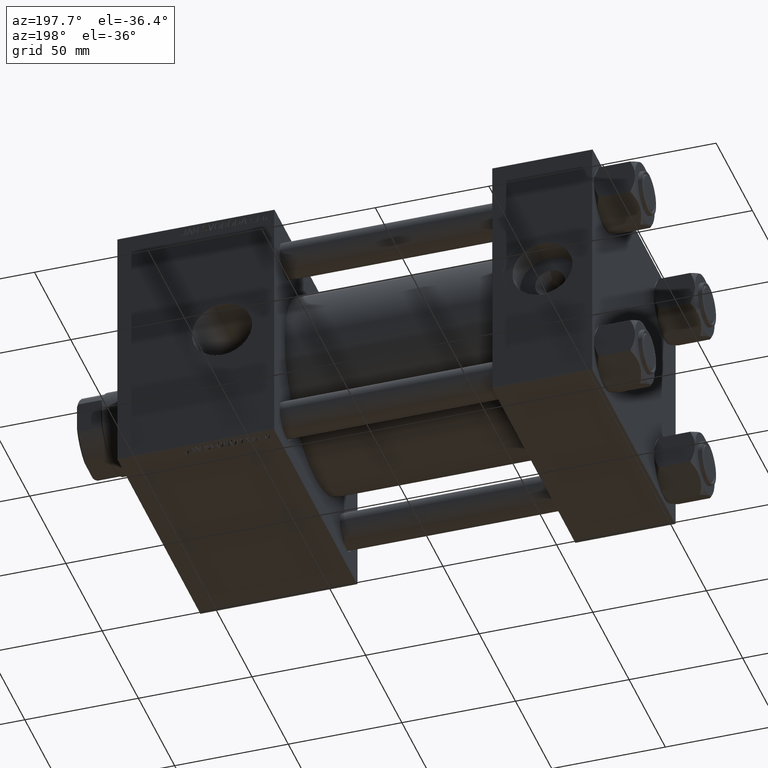
[diagram: clean part render]
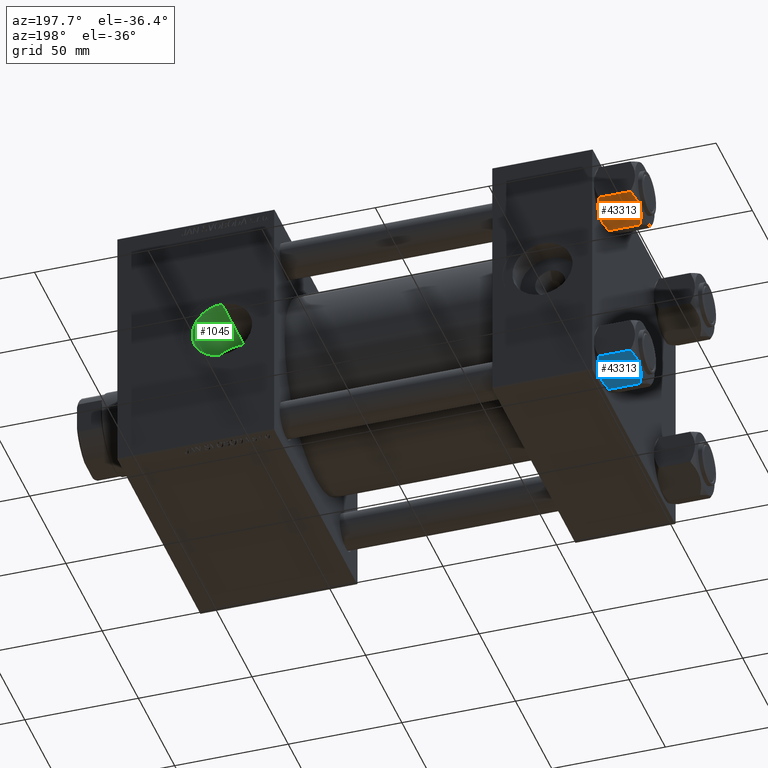
[diagram: same view with three faces highlighted in distinct colors, each labeled with its STEP entity id]
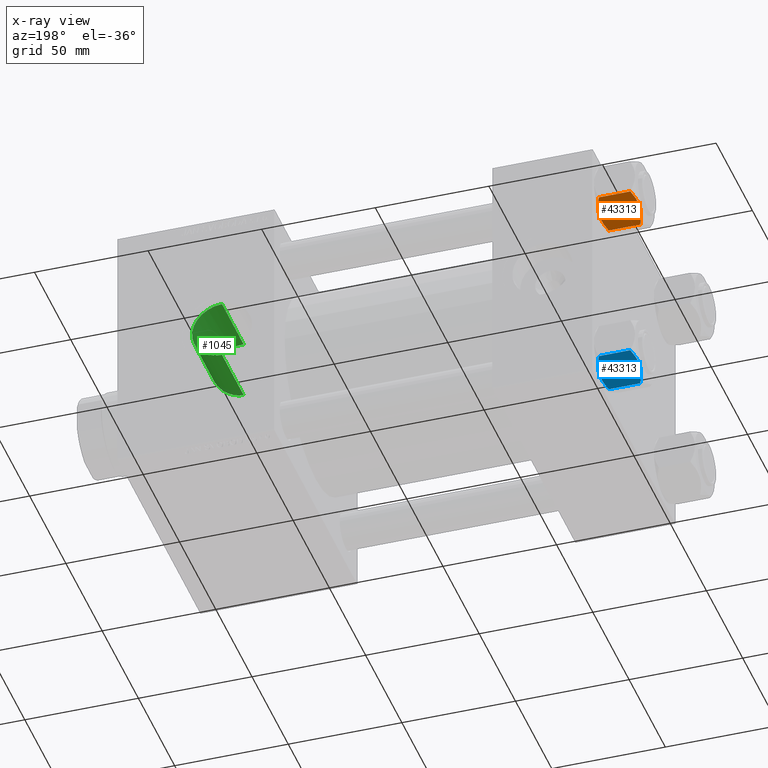
[diagram: x-ray of the same camera — body ghosted, the three highlighted faces saturated]
A machine part, auxiliary view with three faces highlighted in distinct colors.
The next image is the same camera in x-ray (body ghosted, the three faces saturated) — at least one of them is partly hidden behind the body in this view.
Their STEP definitions:

[orange] entity #43313 — the highlighted planar face has unit normal (0, -0.5, 0.866).
#772 = VECTOR ( 'NONE', #8781, 999.9999999999998863 ) ;
#783 = CARTESIAN_POINT ( 'NONE',  ( -15.52647173767731736, 0.1619957022865152474, -16.00000000000000000 ) ) ;
#1253 = LINE ( 'NONE', #49945, #50445 ) ;
#1801 = DIRECTION ( 'NONE',  ( 0.8660254037844387076, -0.4999999999999999445, 0.000000000000000000 ) ) ;
#2352 = VERTEX_POINT ( 'NONE', #22925 ) ;
#3973 = VECTOR ( 'NONE', #16691, 999.9999999999998863 ) ;
#4525 = EDGE_CURVE ( 'NONE', #18937, #45955, #20881, .T. ) ;
#5187 = CARTESIAN_POINT ( 'NONE',  ( -10.40215497533437805, 9.037572688741343896, -17.80281335400754372 ) ) ;
#5430 = CARTESIAN_POINT ( 'NONE',  ( -8.506059550806625680, 12.32170630002228684, -16.56553707812498288 ) ) ;
#5691 = CARTESIAN_POINT ( 'NONE',  ( -8.502393313253749696, 12.32805640973648309, -1.411989271640067933 ) ) ;
#5762 = CARTESIAN_POINT ( 'NONE',  ( -13.99051971937273997, 2.822342635978005276, -0.7317196846281108780 ) ) ;
#5963 = CARTESIAN_POINT ( 'NONE',  ( -9.114548888011780647, 11.26777185211904353, -0.9142282604026925608 ) ) ;
#6275 = CARTESIAN_POINT ( 'NONE',  ( -11.71500000000000341, 6.763658403556467746, 0.000000000000000000 ) ) ;
#6613 = ORIENTED_EDGE ( 'NONE', *, *, #45432, .F. ) ;
#6719 = EDGE_CURVE ( 'NONE', #45955, #19687, #36645, .T. ) ;
#7564 = EDGE_LOOP ( 'NONE', ( #28405, #41729, #31507, #37994, #9455, #30298, #31421, #36966, #6613, #27648 ) ) ;
#7977 = CARTESIAN_POINT ( 'NONE',  ( -11.71499999999999631, 6.763658403556463306, -18.00000000000000000 ) ) ;
#8781 = DIRECTION ( 'NONE',  ( -0.4999999999999999445, -0.8660254037844387076, 0.000000000000000000 ) ) ;
#9353 = CARTESIAN_POINT ( 'NONE',  ( -9.124083218049243271, 11.25125790807802240, -17.05261278537717828 ) ) ;
#9419 = CARTESIAN_POINT ( 'NONE',  ( -12.37702203890362185, 5.617002596445053619, 4.300668617525835570E-15 ) ) ;
#9455 = ORIENTED_EDGE ( 'NONE', *, *, #15096, .F. ) ;
#9854 = CARTESIAN_POINT ( 'NONE',  ( -11.05297796109638675, 7.910314210667875656, -17.99999999999999645 ) ) ;
#10068 = VECTOR ( 'NONE', #13916, 999.9999999999998863 ) ;
#10291 = CARTESIAN_POINT ( 'NONE',  ( -15.52647173767732802, 0.1619957022864961793, -2.000000000000000000 ) ) ;
#11841 = VERTEX_POINT ( 'NONE', #16564 ) ;
#11906 = EDGE_CURVE ( 'NONE', #31357, #31225, #21268, .T. ) ;
#12688 = CARTESIAN_POINT ( 'NONE',  ( -15.61999999999999567, 8.023367828467702033E-15, -1.999999999999998224 ) ) ;
#12695 = VERTEX_POINT ( 'NONE', #48301 ) ;
#13059 = CARTESIAN_POINT ( 'NONE',  ( -11.71499999999999631, 6.763658403556463306, -18.00000000000000000 ) ) ;
#13308 = LINE ( 'NONE', #40572, #42046 ) ;
#13816 = DIRECTION ( 'NONE',  ( -0.000000000000000000, -0.000000000000000000, 1.000000000000000000 ) ) ;
#13916 = DIRECTION ( 'NONE',  ( -0.4999999999999999445, -0.8660254037844387076, 0.000000000000000000 ) ) ;
#15096 = EDGE_CURVE ( 'NONE', #11841, #46258, #37931, .T. ) ;
#16477 = CARTESIAN_POINT ( 'NONE',  ( -14.92760668674624114, 1.199260397376460840, -16.58801072835992940 ) ) ;
#16564 = CARTESIAN_POINT ( 'NONE',  ( -7.903528262322672582, 13.36532110482643354, -2.000000000000000000 ) ) ;
#16691 = DIRECTION ( 'NONE',  ( 0.4999999999999999445, 0.8660254037844387076, 0.000000000000000000 ) ) ;
#17449 = CARTESIAN_POINT ( 'NONE',  ( -8.202637790192651934, 12.84724820552769486, -16.29368822085855228 ) ) ;
#17962 = CARTESIAN_POINT ( 'NONE',  ( -7.903528262322672582, 13.36532110482643354, -2.000000000000000000 ) ) ;
#17990 = CARTESIAN_POINT ( 'NONE',  ( -15.61999999999999567, 8.023367828467702033E-15, -18.00000000000000000 ) ) ;
#18324 = EDGE_CURVE ( 'NONE', #18937, #31225, #1253, .T. ) ;
#18854 = EDGE_CURVE ( 'NONE', #46258, #31357, #47101, .T. ) ;
#18937 = VERTEX_POINT ( 'NONE', #42932 ) ;
#19687 = VERTEX_POINT ( 'NONE', #7977 ) ;
#20881 = LINE ( 'NONE', #21135, #3973 ) ;
#20924 = CARTESIAN_POINT ( 'NONE',  ( -13.04337073483127796, 4.462852799541088267, -17.75691532989869614 ) ) ;
#20944 = EDGE_CURVE ( 'NONE', #12695, #40712, #13308, .T. ) ;
#21135 = CARTESIAN_POINT ( 'NONE',  ( -15.61999999999999567, 8.023367828467702033E-15, -16.00000000000000000 ) ) ;
#21268 = LINE ( 'NONE', #45372, #10068 ) ;
#21647 = CARTESIAN_POINT ( 'NONE',  ( -11.38181071908714515, 7.340759166634869715, 4.331726492258492723E-15 ) ) ;
#21720 = CARTESIAN_POINT ( 'NONE',  ( -14.92394044919338825, 1.205610507090627781, -1.434462921875002683 ) ) ;
#21843 = CARTESIAN_POINT ( 'NONE',  ( -7.809999999999996945, 13.52731680711293727, -1.999999999999998224 ) ) ;
#21912 = CARTESIAN_POINT ( 'NONE',  ( -11.04378428799594758, 7.926238119586002995, -0.05089381635301037932 ) ) ;
#22925 = CARTESIAN_POINT ( 'NONE',  ( -7.903528262322682352, 13.36532110482641400, -16.00000000000000000 ) ) ;
#23891 = CARTESIAN_POINT ( 'NONE',  ( -15.61999999999999567, 8.023367828467702033E-15, -16.00000000000000000 ) ) ;
#27586 = AXIS2_PLACEMENT_3D ( 'NONE', #17990, #1801, #30322 ) ;
#27648 = ORIENTED_EDGE ( 'NONE', *, *, #6719, .F. ) ;
#28405 = ORIENTED_EDGE ( 'NONE', *, *, #4525, .F. ) ;
#29834 = CARTESIAN_POINT ( 'NONE',  ( -13.02784502466562522, 4.489744118371585380, -0.1971866459924509485 ) ) ;
#30298 = ORIENTED_EDGE ( 'NONE', *, *, #41751, .F. ) ;
#30322 = DIRECTION ( 'NONE',  ( 0.4999999999999998890, 0.8660254037844385966, 0.000000000000000000 ) ) ;
#30581 = PLANE ( 'NONE',  #27586 ) ;
#31225 = VERTEX_POINT ( 'NONE', #12688 ) ;
#31357 = VERTEX_POINT ( 'NONE', #10291 ) ;
#31421 = ORIENTED_EDGE ( 'NONE', *, *, #20944, .F. ) ;
#31507 = ORIENTED_EDGE ( 'NONE', *, *, #11906, .F. ) ;
#32368 = CARTESIAN_POINT ( 'NONE',  ( -15.61999999999999567, 8.023367828467702033E-15, -1.999999999999998224 ) ) ;
#33707 = CARTESIAN_POINT ( 'NONE',  ( -11.71500000000000341, 6.763658403556467746, 0.000000000000000000 ) ) ;
#33769 = CARTESIAN_POINT ( 'NONE',  ( -14.30591678195076177, 2.276058899034892224, -0.9473872146228117241 ) ) ;
#33945 = CARTESIAN_POINT ( 'NONE',  ( -9.439480280627265074, 10.70497417113491601, -17.26828031537187869 ) ) ;
#36645 = B_SPLINE_CURVE_WITH_KNOTS ( 'NONE', 3,
 ( #783, #16477, #48460, #41096, #20924, #48954, #44523, #13059 ),
 .UNSPECIFIED., .F., .F.,
 ( 4, 2, 2, 4 ),
 ( 4.472842641925297170E-07, 0.003945636373369303118, 0.005918230917921858333, 0.007890825462474413549 ),
 .UNSPECIFIED. ) ;
#36966 = ORIENTED_EDGE ( 'NONE', *, *, #51538, .F. ) ;
#37171 = CARTESIAN_POINT ( 'NONE',  ( -15.52647173767731736, 0.1619957022865152474, -16.00000000000000000 ) ) ;
#37358 = CARTESIAN_POINT ( 'NONE',  ( -7.903528262322682352, 13.36532110482641400, -16.00000000000000000 ) ) ;
#37699 = CARTESIAN_POINT ( 'NONE',  ( -15.52647173767732802, 0.1619957022864961793, -2.000000000000000000 ) ) ;
#37882 = CARTESIAN_POINT ( 'NONE',  ( -11.71500000000000341, 6.763658403556467746, 0.000000000000000000 ) ) ;
#37931 = B_SPLINE_CURVE_WITH_KNOTS ( 'NONE', 3,
 ( #17962, #5691, #5963, #41557, #44982, #21912, #21647, #37882 ),
 .UNSPECIFIED., .F., .F.,
 ( 4, 2, 2, 4 ),
 ( 4.472842641835287214E-07, 0.003945636373369305720, 0.005918230917921867007, 0.007890825462474429161 ),
 .UNSPECIFIED. ) ;
#37994 = ORIENTED_EDGE ( 'NONE', *, *, #18854, .F. ) ;
#38143 = DIRECTION ( 'NONE',  ( -0.000000000000000000, -0.000000000000000000, 1.000000000000000000 ) ) ;
#40375 = LINE ( 'NONE', #23891, #44360 ) ;
#40572 = CARTESIAN_POINT ( 'NONE',  ( -7.809999999999996945, 13.52731680711293727, -18.00000000000000000 ) ) ;
#40712 = VERTEX_POINT ( 'NONE', #21843 ) ;
#40870 = DIRECTION ( 'NONE',  ( 0.4999999999999999445, 0.8660254037844387076, 0.000000000000000000 ) ) ;
#41096 = CARTESIAN_POINT ( 'NONE',  ( -13.36540581434587693, 3.905071680002328183, -17.61639331488793658 ) ) ;
#41557 = CARTESIAN_POINT ( 'NONE',  ( -10.06459418565412278, 9.622245127110613083, -0.3836066851120565890 ) ) ;
#41729 = ORIENTED_EDGE ( 'NONE', *, *, #18324, .T. ) ;
#41751 = EDGE_CURVE ( 'NONE', #40712, #11841, #44668, .T. ) ;
#42046 = VECTOR ( 'NONE', #13816, 1000.000000000000000 ) ;
#42404 = CARTESIAN_POINT ( 'NONE',  ( -15.22736220980736377, 0.6800686015852189792, -1.706311779141444385 ) ) ;
#42932 = CARTESIAN_POINT ( 'NONE',  ( -15.61999999999999567, 8.023367828467702033E-15, -16.00000000000000000 ) ) ;
#43313 = ADVANCED_FACE ( 'NONE', ( #50497 ), #30581, .F. ) ;
#44360 = VECTOR ( 'NONE', #40870, 999.9999999999998863 ) ;
#44523 = CARTESIAN_POINT ( 'NONE',  ( -12.04818928091285635, 6.186557640478062225, -17.99999999999999289 ) ) ;
#44668 = LINE ( 'NONE', #32368, #772 ) ;
#44982 = CARTESIAN_POINT ( 'NONE',  ( -10.38662926516871998, 9.064464007571849891, -0.2430846701012936983 ) ) ;
#45372 = CARTESIAN_POINT ( 'NONE',  ( -15.61999999999999567, 8.023367828467702033E-15, -1.999999999999998224 ) ) ;
#45432 = EDGE_CURVE ( 'NONE', #19687, #2352, #49118, .T. ) ;
#45745 = CARTESIAN_POINT ( 'NONE',  ( -11.71499999999999631, 6.763658403556463306, -18.00000000000000000 ) ) ;
#45955 = VERTEX_POINT ( 'NONE', #37171 ) ;
#46258 = VERTEX_POINT ( 'NONE', #33707 ) ;
#47101 = B_SPLINE_CURVE_WITH_KNOTS ( 'NONE', 3,
 ( #6275, #9419, #29834, #5762, #33769, #21720, #42404, #37699 ),
 .UNSPECIFIED., .F., .F.,
 ( 4, 2, 2, 4 ),
 ( 0.007890825462474429161, 0.01181022244528554845, 0.01376992093669110635, 0.01572961942809666600 ),
 .UNSPECIFIED. ) ;
#48301 = CARTESIAN_POINT ( 'NONE',  ( -7.809999999999996945, 13.52731680711293727, -16.00000000000000000 ) ) ;
#48460 = CARTESIAN_POINT ( 'NONE',  ( -14.31545111198820663, 2.259544954993902177, -17.08577173959729123 ) ) ;
#48954 = CARTESIAN_POINT ( 'NONE',  ( -12.38621571200405391, 5.601078687526930722, -17.94910618364698252 ) ) ;
#49118 = B_SPLINE_CURVE_WITH_KNOTS ( 'NONE', 3,
 ( #45745, #9854, #5187, #33945, #9353, #5430, #17449, #37358 ),
 .UNSPECIFIED., .F., .F.,
 ( 4, 2, 2, 4 ),
 ( 0.007890825462474413549, 0.01181022244528551549, 0.01376992093669106992, 0.01572961942809662436 ),
 .UNSPECIFIED. ) ;
#49945 = CARTESIAN_POINT ( 'NONE',  ( -15.61999999999999567, 8.023367828467702033E-15, -18.00000000000000000 ) ) ;
#50445 = VECTOR ( 'NONE', #38143, 1000.000000000000000 ) ;
#50497 = FACE_OUTER_BOUND ( 'NONE', #7564, .T. ) ;
#51538 = EDGE_CURVE ( 'NONE', #2352, #12695, #40375, .T. ) ;

[blue] entity #43313 — the highlighted planar face has unit normal (0, -0.5, 0.866).
#772 = VECTOR ( 'NONE', #8781, 999.9999999999998863 ) ;
#783 = CARTESIAN_POINT ( 'NONE',  ( -15.52647173767731736, 0.1619957022865152474, -16.00000000000000000 ) ) ;
#1253 = LINE ( 'NONE', #49945, #50445 ) ;
#1801 = DIRECTION ( 'NONE',  ( 0.8660254037844387076, -0.4999999999999999445, 0.000000000000000000 ) ) ;
#2352 = VERTEX_POINT ( 'NONE', #22925 ) ;
#3973 = VECTOR ( 'NONE', #16691, 999.9999999999998863 ) ;
#4525 = EDGE_CURVE ( 'NONE', #18937, #45955, #20881, .T. ) ;
#5187 = CARTESIAN_POINT ( 'NONE',  ( -10.40215497533437805, 9.037572688741343896, -17.80281335400754372 ) ) ;
#5430 = CARTESIAN_POINT ( 'NONE',  ( -8.506059550806625680, 12.32170630002228684, -16.56553707812498288 ) ) ;
#5691 = CARTESIAN_POINT ( 'NONE',  ( -8.502393313253749696, 12.32805640973648309, -1.411989271640067933 ) ) ;
#5762 = CARTESIAN_POINT ( 'NONE',  ( -13.99051971937273997, 2.822342635978005276, -0.7317196846281108780 ) ) ;
#5963 = CARTESIAN_POINT ( 'NONE',  ( -9.114548888011780647, 11.26777185211904353, -0.9142282604026925608 ) ) ;
#6275 = CARTESIAN_POINT ( 'NONE',  ( -11.71500000000000341, 6.763658403556467746, 0.000000000000000000 ) ) ;
#6613 = ORIENTED_EDGE ( 'NONE', *, *, #45432, .F. ) ;
#6719 = EDGE_CURVE ( 'NONE', #45955, #19687, #36645, .T. ) ;
#7564 = EDGE_LOOP ( 'NONE', ( #28405, #41729, #31507, #37994, #9455, #30298, #31421, #36966, #6613, #27648 ) ) ;
#7977 = CARTESIAN_POINT ( 'NONE',  ( -11.71499999999999631, 6.763658403556463306, -18.00000000000000000 ) ) ;
#8781 = DIRECTION ( 'NONE',  ( -0.4999999999999999445, -0.8660254037844387076, 0.000000000000000000 ) ) ;
#9353 = CARTESIAN_POINT ( 'NONE',  ( -9.124083218049243271, 11.25125790807802240, -17.05261278537717828 ) ) ;
#9419 = CARTESIAN_POINT ( 'NONE',  ( -12.37702203890362185, 5.617002596445053619, 4.300668617525835570E-15 ) ) ;
#9455 = ORIENTED_EDGE ( 'NONE', *, *, #15096, .F. ) ;
#9854 = CARTESIAN_POINT ( 'NONE',  ( -11.05297796109638675, 7.910314210667875656, -17.99999999999999645 ) ) ;
#10068 = VECTOR ( 'NONE', #13916, 999.9999999999998863 ) ;
#10291 = CARTESIAN_POINT ( 'NONE',  ( -15.52647173767732802, 0.1619957022864961793, -2.000000000000000000 ) ) ;
#11841 = VERTEX_POINT ( 'NONE', #16564 ) ;
#11906 = EDGE_CURVE ( 'NONE', #31357, #31225, #21268, .T. ) ;
#12688 = CARTESIAN_POINT ( 'NONE',  ( -15.61999999999999567, 8.023367828467702033E-15, -1.999999999999998224 ) ) ;
#12695 = VERTEX_POINT ( 'NONE', #48301 ) ;
#13059 = CARTESIAN_POINT ( 'NONE',  ( -11.71499999999999631, 6.763658403556463306, -18.00000000000000000 ) ) ;
#13308 = LINE ( 'NONE', #40572, #42046 ) ;
#13816 = DIRECTION ( 'NONE',  ( -0.000000000000000000, -0.000000000000000000, 1.000000000000000000 ) ) ;
#13916 = DIRECTION ( 'NONE',  ( -0.4999999999999999445, -0.8660254037844387076, 0.000000000000000000 ) ) ;
#15096 = EDGE_CURVE ( 'NONE', #11841, #46258, #37931, .T. ) ;
#16477 = CARTESIAN_POINT ( 'NONE',  ( -14.92760668674624114, 1.199260397376460840, -16.58801072835992940 ) ) ;
#16564 = CARTESIAN_POINT ( 'NONE',  ( -7.903528262322672582, 13.36532110482643354, -2.000000000000000000 ) ) ;
#16691 = DIRECTION ( 'NONE',  ( 0.4999999999999999445, 0.8660254037844387076, 0.000000000000000000 ) ) ;
#17449 = CARTESIAN_POINT ( 'NONE',  ( -8.202637790192651934, 12.84724820552769486, -16.29368822085855228 ) ) ;
#17962 = CARTESIAN_POINT ( 'NONE',  ( -7.903528262322672582, 13.36532110482643354, -2.000000000000000000 ) ) ;
#17990 = CARTESIAN_POINT ( 'NONE',  ( -15.61999999999999567, 8.023367828467702033E-15, -18.00000000000000000 ) ) ;
#18324 = EDGE_CURVE ( 'NONE', #18937, #31225, #1253, .T. ) ;
#18854 = EDGE_CURVE ( 'NONE', #46258, #31357, #47101, .T. ) ;
#18937 = VERTEX_POINT ( 'NONE', #42932 ) ;
#19687 = VERTEX_POINT ( 'NONE', #7977 ) ;
#20881 = LINE ( 'NONE', #21135, #3973 ) ;
#20924 = CARTESIAN_POINT ( 'NONE',  ( -13.04337073483127796, 4.462852799541088267, -17.75691532989869614 ) ) ;
#20944 = EDGE_CURVE ( 'NONE', #12695, #40712, #13308, .T. ) ;
#21135 = CARTESIAN_POINT ( 'NONE',  ( -15.61999999999999567, 8.023367828467702033E-15, -16.00000000000000000 ) ) ;
#21268 = LINE ( 'NONE', #45372, #10068 ) ;
#21647 = CARTESIAN_POINT ( 'NONE',  ( -11.38181071908714515, 7.340759166634869715, 4.331726492258492723E-15 ) ) ;
#21720 = CARTESIAN_POINT ( 'NONE',  ( -14.92394044919338825, 1.205610507090627781, -1.434462921875002683 ) ) ;
#21843 = CARTESIAN_POINT ( 'NONE',  ( -7.809999999999996945, 13.52731680711293727, -1.999999999999998224 ) ) ;
#21912 = CARTESIAN_POINT ( 'NONE',  ( -11.04378428799594758, 7.926238119586002995, -0.05089381635301037932 ) ) ;
#22925 = CARTESIAN_POINT ( 'NONE',  ( -7.903528262322682352, 13.36532110482641400, -16.00000000000000000 ) ) ;
#23891 = CARTESIAN_POINT ( 'NONE',  ( -15.61999999999999567, 8.023367828467702033E-15, -16.00000000000000000 ) ) ;
#27586 = AXIS2_PLACEMENT_3D ( 'NONE', #17990, #1801, #30322 ) ;
#27648 = ORIENTED_EDGE ( 'NONE', *, *, #6719, .F. ) ;
#28405 = ORIENTED_EDGE ( 'NONE', *, *, #4525, .F. ) ;
#29834 = CARTESIAN_POINT ( 'NONE',  ( -13.02784502466562522, 4.489744118371585380, -0.1971866459924509485 ) ) ;
#30298 = ORIENTED_EDGE ( 'NONE', *, *, #41751, .F. ) ;
#30322 = DIRECTION ( 'NONE',  ( 0.4999999999999998890, 0.8660254037844385966, 0.000000000000000000 ) ) ;
#30581 = PLANE ( 'NONE',  #27586 ) ;
#31225 = VERTEX_POINT ( 'NONE', #12688 ) ;
#31357 = VERTEX_POINT ( 'NONE', #10291 ) ;
#31421 = ORIENTED_EDGE ( 'NONE', *, *, #20944, .F. ) ;
#31507 = ORIENTED_EDGE ( 'NONE', *, *, #11906, .F. ) ;
#32368 = CARTESIAN_POINT ( 'NONE',  ( -15.61999999999999567, 8.023367828467702033E-15, -1.999999999999998224 ) ) ;
#33707 = CARTESIAN_POINT ( 'NONE',  ( -11.71500000000000341, 6.763658403556467746, 0.000000000000000000 ) ) ;
#33769 = CARTESIAN_POINT ( 'NONE',  ( -14.30591678195076177, 2.276058899034892224, -0.9473872146228117241 ) ) ;
#33945 = CARTESIAN_POINT ( 'NONE',  ( -9.439480280627265074, 10.70497417113491601, -17.26828031537187869 ) ) ;
#36645 = B_SPLINE_CURVE_WITH_KNOTS ( 'NONE', 3,
 ( #783, #16477, #48460, #41096, #20924, #48954, #44523, #13059 ),
 .UNSPECIFIED., .F., .F.,
 ( 4, 2, 2, 4 ),
 ( 4.472842641925297170E-07, 0.003945636373369303118, 0.005918230917921858333, 0.007890825462474413549 ),
 .UNSPECIFIED. ) ;
#36966 = ORIENTED_EDGE ( 'NONE', *, *, #51538, .F. ) ;
#37171 = CARTESIAN_POINT ( 'NONE',  ( -15.52647173767731736, 0.1619957022865152474, -16.00000000000000000 ) ) ;
#37358 = CARTESIAN_POINT ( 'NONE',  ( -7.903528262322682352, 13.36532110482641400, -16.00000000000000000 ) ) ;
#37699 = CARTESIAN_POINT ( 'NONE',  ( -15.52647173767732802, 0.1619957022864961793, -2.000000000000000000 ) ) ;
#37882 = CARTESIAN_POINT ( 'NONE',  ( -11.71500000000000341, 6.763658403556467746, 0.000000000000000000 ) ) ;
#37931 = B_SPLINE_CURVE_WITH_KNOTS ( 'NONE', 3,
 ( #17962, #5691, #5963, #41557, #44982, #21912, #21647, #37882 ),
 .UNSPECIFIED., .F., .F.,
 ( 4, 2, 2, 4 ),
 ( 4.472842641835287214E-07, 0.003945636373369305720, 0.005918230917921867007, 0.007890825462474429161 ),
 .UNSPECIFIED. ) ;
#37994 = ORIENTED_EDGE ( 'NONE', *, *, #18854, .F. ) ;
#38143 = DIRECTION ( 'NONE',  ( -0.000000000000000000, -0.000000000000000000, 1.000000000000000000 ) ) ;
#40375 = LINE ( 'NONE', #23891, #44360 ) ;
#40572 = CARTESIAN_POINT ( 'NONE',  ( -7.809999999999996945, 13.52731680711293727, -18.00000000000000000 ) ) ;
#40712 = VERTEX_POINT ( 'NONE', #21843 ) ;
#40870 = DIRECTION ( 'NONE',  ( 0.4999999999999999445, 0.8660254037844387076, 0.000000000000000000 ) ) ;
#41096 = CARTESIAN_POINT ( 'NONE',  ( -13.36540581434587693, 3.905071680002328183, -17.61639331488793658 ) ) ;
#41557 = CARTESIAN_POINT ( 'NONE',  ( -10.06459418565412278, 9.622245127110613083, -0.3836066851120565890 ) ) ;
#41729 = ORIENTED_EDGE ( 'NONE', *, *, #18324, .T. ) ;
#41751 = EDGE_CURVE ( 'NONE', #40712, #11841, #44668, .T. ) ;
#42046 = VECTOR ( 'NONE', #13816, 1000.000000000000000 ) ;
#42404 = CARTESIAN_POINT ( 'NONE',  ( -15.22736220980736377, 0.6800686015852189792, -1.706311779141444385 ) ) ;
#42932 = CARTESIAN_POINT ( 'NONE',  ( -15.61999999999999567, 8.023367828467702033E-15, -16.00000000000000000 ) ) ;
#43313 = ADVANCED_FACE ( 'NONE', ( #50497 ), #30581, .F. ) ;
#44360 = VECTOR ( 'NONE', #40870, 999.9999999999998863 ) ;
#44523 = CARTESIAN_POINT ( 'NONE',  ( -12.04818928091285635, 6.186557640478062225, -17.99999999999999289 ) ) ;
#44668 = LINE ( 'NONE', #32368, #772 ) ;
#44982 = CARTESIAN_POINT ( 'NONE',  ( -10.38662926516871998, 9.064464007571849891, -0.2430846701012936983 ) ) ;
#45372 = CARTESIAN_POINT ( 'NONE',  ( -15.61999999999999567, 8.023367828467702033E-15, -1.999999999999998224 ) ) ;
#45432 = EDGE_CURVE ( 'NONE', #19687, #2352, #49118, .T. ) ;
#45745 = CARTESIAN_POINT ( 'NONE',  ( -11.71499999999999631, 6.763658403556463306, -18.00000000000000000 ) ) ;
#45955 = VERTEX_POINT ( 'NONE', #37171 ) ;
#46258 = VERTEX_POINT ( 'NONE', #33707 ) ;
#47101 = B_SPLINE_CURVE_WITH_KNOTS ( 'NONE', 3,
 ( #6275, #9419, #29834, #5762, #33769, #21720, #42404, #37699 ),
 .UNSPECIFIED., .F., .F.,
 ( 4, 2, 2, 4 ),
 ( 0.007890825462474429161, 0.01181022244528554845, 0.01376992093669110635, 0.01572961942809666600 ),
 .UNSPECIFIED. ) ;
#48301 = CARTESIAN_POINT ( 'NONE',  ( -7.809999999999996945, 13.52731680711293727, -16.00000000000000000 ) ) ;
#48460 = CARTESIAN_POINT ( 'NONE',  ( -14.31545111198820663, 2.259544954993902177, -17.08577173959729123 ) ) ;
#48954 = CARTESIAN_POINT ( 'NONE',  ( -12.38621571200405391, 5.601078687526930722, -17.94910618364698252 ) ) ;
#49118 = B_SPLINE_CURVE_WITH_KNOTS ( 'NONE', 3,
 ( #45745, #9854, #5187, #33945, #9353, #5430, #17449, #37358 ),
 .UNSPECIFIED., .F., .F.,
 ( 4, 2, 2, 4 ),
 ( 0.007890825462474413549, 0.01181022244528551549, 0.01376992093669106992, 0.01572961942809662436 ),
 .UNSPECIFIED. ) ;
#49945 = CARTESIAN_POINT ( 'NONE',  ( -15.61999999999999567, 8.023367828467702033E-15, -18.00000000000000000 ) ) ;
#50445 = VECTOR ( 'NONE', #38143, 1000.000000000000000 ) ;
#50497 = FACE_OUTER_BOUND ( 'NONE', #7564, .T. ) ;
#51538 = EDGE_CURVE ( 'NONE', #2352, #12695, #40375, .T. ) ;

[green] entity #1045 — the highlighted cylindrical surface (edge-blend (fillet) strip) has radius 13.22 mm, axis along (0, 1, 0).
#533 = CARTESIAN_POINT ( 'NONE',  ( 174.8643368903296391, 29.93579667437073510, 5.894660407061800278 ) ) ;
#1045 = ADVANCED_FACE ( 'NONE', ( #47771 ), #19975, .F. ) ;
#1076 = DIRECTION ( 'NONE',  ( 0.000000000000000000, 1.000000000000000000, 0.000000000000000000 ) ) ;
#1487 = EDGE_CURVE ( 'NONE', #47697, #17080, #26156, .T. ) ;
#1551 = CARTESIAN_POINT ( 'NONE',  ( 166.4696610847829845, 27.69079802243235733, -12.78696705022294822 ) ) ;
#3704 = CARTESIAN_POINT ( 'NONE',  ( 169.6320428118090149, 28.27240108936178586, -11.44420901544192937 ) ) ;
#3960 = CARTESIAN_POINT ( 'NONE',  ( 175.7675118120710636, 30.30639514028142045, -3.456569789616474875 ) ) ;
#4111 = B_SPLINE_CURVE_WITH_KNOTS ( 'NONE', 3,
 ( #23860, #8141, #32480, #39827, #32229, #35638, #43505, #4473, #20424, #31983, #47705, #35888, #35381, #47959, #36392, #48469, #28295, #20176, #533, #23607, #19401, #28557, #12054, #28043, #43764, #47440, #11807, #44268, #31460, #44012, #3960, #24118, #11537, #8399, #27523, #24377, #12564, #36147, #7633, #39569, #3704, #15725, #31718, #12818, #1551, #28788, #32747, #5738 ),
 .UNSPECIFIED., .F., .F.,
 ( 4, 2, 2, 2, 2, 2, 2, 2, 2, 2, 2, 2, 2, 2, 2, 2, 2, 2, 2, 2, 2, 2, 2, 4 ),
 ( 2.818592028051833686E-17, 0.002615910341172243605, 0.003923865511758310547, 0.005231820682344377922, 0.007847731023516510071, 0.009155686194102544487, 0.01046364136468857717, 0.01177159653527460985, 0.01307955170586064600, 0.01569546204703271136, 0.01700341721761873190, 0.01831137238820474897, 0.02092728272937676576, 0.02223523789996277589, 0.02354319307054878255, 0.02485114824113479962, 0.02615910341172080628, 0.02877501375289282654, 0.03139092409406483986, 0.03400683443523686011, 0.03531478960582287024, 0.03662274477640887343, 0.03923865511758097696, 0.04185456545875306661 ),
 .UNSPECIFIED. ) ;
#4473 = CARTESIAN_POINT ( 'NONE',  ( 168.8969488060434685, 28.10055322374288878, 11.86343920679243169 ) ) ;
#4748 = DIRECTION ( 'NONE',  ( 0.000000000000000000, 0.000000000000000000, 1.000000000000000000 ) ) ;
#5738 = CARTESIAN_POINT ( 'NONE',  ( 163.0000000000000000, 27.48602554026317435, -13.22000000000001307 ) ) ;
#7419 = EDGE_CURVE ( 'NONE', #44607, #47697, #4111, .T. ) ;
#7525 = LINE ( 'NONE', #23503, #38523 ) ;
#7633 = CARTESIAN_POINT ( 'NONE',  ( 171.0753392169380902, 28.63943698772465041, -10.50217696469661810 ) ) ;
#8141 = CARTESIAN_POINT ( 'NONE',  ( 163.8855327408035407, 27.48602554026318145, 13.22000000000001840 ) ) ;
#8399 = CARTESIAN_POINT ( 'NONE',  ( 174.8593363036723076, 29.93377229452418931, -5.906436259598309313 ) ) ;
#9774 = ORIENTED_EDGE ( 'NONE', *, *, #13015, .T. ) ;
#10918 = DIRECTION ( 'NONE',  ( -0.000000000000000000, 1.000000000000000000, -0.000000000000000000 ) ) ;
#11537 = CARTESIAN_POINT ( 'NONE',  ( 175.3644279058373456, 30.13862959712757927, -4.698902454236117521 ) ) ;
#11807 = CARTESIAN_POINT ( 'NONE',  ( 176.1984705233118120, 30.49064891090928242, -0.8733378184870491667 ) ) ;
#11809 = CARTESIAN_POINT ( 'NONE',  ( 163.0000000000000000, 57.29999999999999716, -13.22000000000001307 ) ) ;
#12054 = CARTESIAN_POINT ( 'NONE',  ( 175.8747156560742440, 30.35183426881570057, 3.033289607200693627 ) ) ;
#12564 = CARTESIAN_POINT ( 'NONE',  ( 172.9410103472627043, 29.22290351019301013, -8.756306246684284034 ) ) ;
#12707 = CARTESIAN_POINT ( 'NONE',  ( 163.0000000000000000, 27.48602554026317435, -13.22000000000001307 ) ) ;
#12818 = CARTESIAN_POINT ( 'NONE',  ( 167.2960742192382213, 27.80881603908519750, -12.53195482565466357 ) ) ;
#12876 = CARTESIAN_POINT ( 'NONE',  ( 163.0000000000000000, -37.39180658914467159, 0.000000000000000000 ) ) ;
#13015 = EDGE_CURVE ( 'NONE', #45717, #17080, #16801, .T. ) ;
#15725 = CARTESIAN_POINT ( 'NONE',  ( 168.8730586833315215, 28.10404756966394402, -11.85162830791340483 ) ) ;
#15934 = EDGE_CURVE ( 'NONE', #44607, #45717, #7525, .T. ) ;
#16801 = CIRCLE ( 'NONE', #48611, 13.22000000000001307 ) ;
#17080 = VERTEX_POINT ( 'NONE', #11809 ) ;
#17363 = EDGE_LOOP ( 'NONE', ( #35622, #36642, #37226, #9774 ) ) ;
#17571 = DIRECTION ( 'NONE',  ( -0.000000000000000000, 1.000000000000000000, -0.000000000000000000 ) ) ;
#19401 = CARTESIAN_POINT ( 'NONE',  ( 175.5100023721408320, 30.19881149110917207, 4.296371544684666866 ) ) ;
#19975 = CYLINDRICAL_SURFACE ( 'NONE', #26495, 13.22000000000001307 ) ;
#20176 = CARTESIAN_POINT ( 'NONE',  ( 174.4583486242808306, 29.77542169699081143, 6.649814669547874146 ) ) ;
#20424 = CARTESIAN_POINT ( 'NONE',  ( 169.6514659840337629, 28.27097215903816618, 11.45712991988678908 ) ) ;
#22297 = CARTESIAN_POINT ( 'NONE',  ( 163.0000000000000000, 57.29999999999999716, 13.22000000000001307 ) ) ;
#23503 = CARTESIAN_POINT ( 'NONE',  ( 163.0000000000000000, -37.39180658914467159, 13.22000000000001307 ) ) ;
#23607 = CARTESIAN_POINT ( 'NONE',  ( 175.3625424656497671, 30.13786678558222221, 4.703320271410693643 ) ) ;
#23860 = CARTESIAN_POINT ( 'NONE',  ( 162.9999999999999716, 27.48602554026317790, 13.22000000000001307 ) ) ;
#24118 = CARTESIAN_POINT ( 'NONE',  ( 175.5129582194591933, 30.20003893920387483, -4.287552819491758704 ) ) ;
#24377 = CARTESIAN_POINT ( 'NONE',  ( 173.4942056788470097, 29.41789931641526223, -8.085460622263509478 ) ) ;
#24649 = CARTESIAN_POINT ( 'NONE',  ( 163.0000000000000000, 57.29999999999999716, 0.000000000000000000 ) ) ;
#26156 = LINE ( 'NONE', #45542, #48202 ) ;
#26495 = AXIS2_PLACEMENT_3D ( 'NONE', #12876, #17571, #29618 ) ;
#27523 = CARTESIAN_POINT ( 'NONE',  ( 174.4503861878859823, 29.77239982286499043, -6.662708342137435125 ) ) ;
#28043 = CARTESIAN_POINT ( 'NONE',  ( 176.1329097274877995, 30.46195461453369546, 1.748736216047925618 ) ) ;
#28295 = CARTESIAN_POINT ( 'NONE',  ( 173.7367022263719036, 29.50776966677245383, 7.725151932871281879 ) ) ;
#28557 = CARTESIAN_POINT ( 'NONE',  ( 175.7661841545625236, 30.30583300278645353, 3.461720660703608843 ) ) ;
#28788 = CARTESIAN_POINT ( 'NONE',  ( 164.7416542302830464, 27.52771524361854460, -13.13437150871262027 ) ) ;
#29618 = DIRECTION ( 'NONE',  ( 0.000000000000000000, 0.000000000000000000, 1.000000000000000000 ) ) ;
#31460 = CARTESIAN_POINT ( 'NONE',  ( 176.0459277866135039, 30.42485490611446508, -2.182113312085375068 ) ) ;
#31718 = CARTESIAN_POINT ( 'NONE',  ( 168.4851791358434809, 28.02529016980756893, -12.03601454843212615 ) ) ;
#31983 = CARTESIAN_POINT ( 'NONE',  ( 170.7225702728568706, 28.54821812984657825, 10.73848987592145754 ) ) ;
#32229 = CARTESIAN_POINT ( 'NONE',  ( 166.4537158172738032, 27.69907105226464239, 12.76836875118541492 ) ) ;
#32480 = CARTESIAN_POINT ( 'NONE',  ( 164.7537315187205706, 27.52885197554175178, 13.13195033011988500 ) ) ;
#32747 = CARTESIAN_POINT ( 'NONE',  ( 163.8717352277853934, 27.48602554026317790, -13.22000000000001307 ) ) ;
#35381 = CARTESIAN_POINT ( 'NONE',  ( 172.0465501249826445, 28.93510828370555998, 9.649323598907578514 ) ) ;
#35622 = ORIENTED_EDGE ( 'NONE', *, *, #1487, .F. ) ;
#35638 = CARTESIAN_POINT ( 'NONE',  ( 167.2894497452240046, 27.81563882654360143, 12.51239443096060100 ) ) ;
#35888 = CARTESIAN_POINT ( 'NONE',  ( 171.7310475744106100, 28.83769873322244592, 9.935816979821428419 ) ) ;
#36147 = CARTESIAN_POINT ( 'NONE',  ( 171.7327826029493281, 28.83428332440469077, -9.961681274751265747 ) ) ;
#36392 = CARTESIAN_POINT ( 'NONE',  ( 172.9348164230368923, 29.22528454778806051, 8.732165186513750399 ) ) ;
#36642 = ORIENTED_EDGE ( 'NONE', *, *, #7419, .F. ) ;
#37226 = ORIENTED_EDGE ( 'NONE', *, *, #15934, .T. ) ;
#37551 = CARTESIAN_POINT ( 'NONE',  ( 162.9999999999999716, 27.48602554026317790, 13.22000000000001307 ) ) ;
#38523 = VECTOR ( 'NONE', #10918, 1000.000000000000000 ) ;
#39569 = CARTESIAN_POINT ( 'NONE',  ( 170.0047017783441277, 28.36245068536647196, -11.21994470187212656 ) ) ;
#39827 = CARTESIAN_POINT ( 'NONE',  ( 166.0317716452721868, 27.64947320514370332, 12.87499841239004184 ) ) ;
#41870 = DIRECTION ( 'NONE',  ( -0.000000000000000000, 1.000000000000000000, -0.000000000000000000 ) ) ;
#43505 = CARTESIAN_POINT ( 'NONE',  ( 167.7010172945183513, 27.88238754425789878, 12.36347585249509606 ) ) ;
#43764 = CARTESIAN_POINT ( 'NONE',  ( 176.2195127473008256, 30.49978880393828717, 0.8828561253888510540 ) ) ;
#44012 = CARTESIAN_POINT ( 'NONE',  ( 175.8741412315924890, 30.35159100764852624, -3.035512785235367605 ) ) ;
#44268 = CARTESIAN_POINT ( 'NONE',  ( 176.1110884841329494, 30.45292577228613595, -1.749771945473035384 ) ) ;
#44607 = VERTEX_POINT ( 'NONE', #37551 ) ;
#45542 = CARTESIAN_POINT ( 'NONE',  ( 163.0000000000000000, -37.39180658914467159, -13.22000000000001307 ) ) ;
#45717 = VERTEX_POINT ( 'NONE', #22297 ) ;
#47440 = CARTESIAN_POINT ( 'NONE',  ( 176.2202405810302537, 30.50010427805971602, -0.4304381874641735606 ) ) ;
#47697 = VERTEX_POINT ( 'NONE', #12707 ) ;
#47705 = CARTESIAN_POINT ( 'NONE',  ( 171.0699659179606442, 28.64447636802817954, 10.47985214046852498 ) ) ;
#47771 = FACE_OUTER_BOUND ( 'NONE', #17363, .T. ) ;
#47959 = CARTESIAN_POINT ( 'NONE',  ( 172.6484352701343710, 29.12889845819639945, 9.047497550056826654 ) ) ;
#48202 = VECTOR ( 'NONE', #41870, 1000.000000000000000 ) ;
#48469 = CARTESIAN_POINT ( 'NONE',  ( 173.4784062549621524, 29.41451473649983939, 8.071820647163596263 ) ) ;
#48611 = AXIS2_PLACEMENT_3D ( 'NONE', #24649, #1076, #4748 ) ;